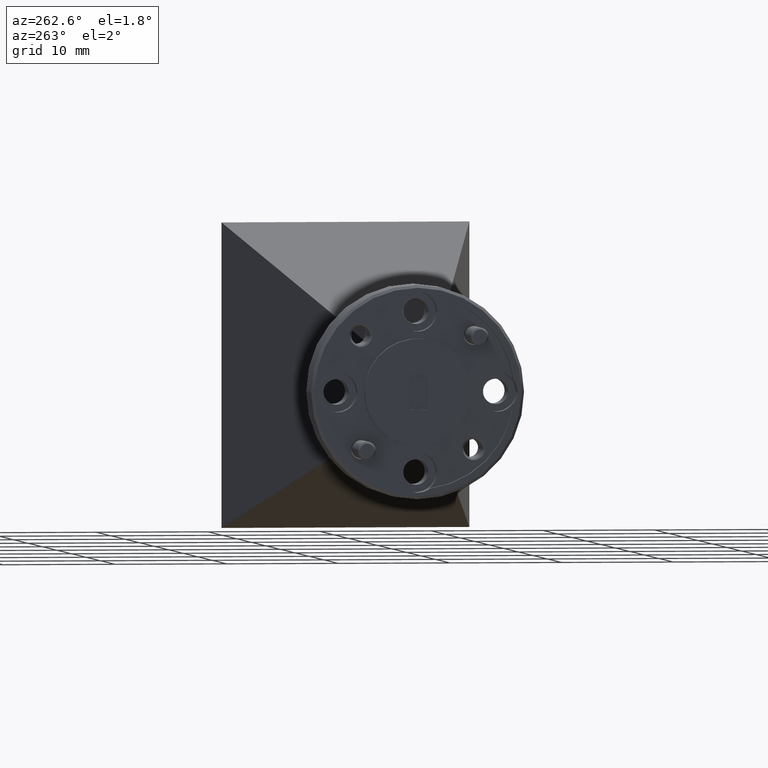
[diagram: clean part render]
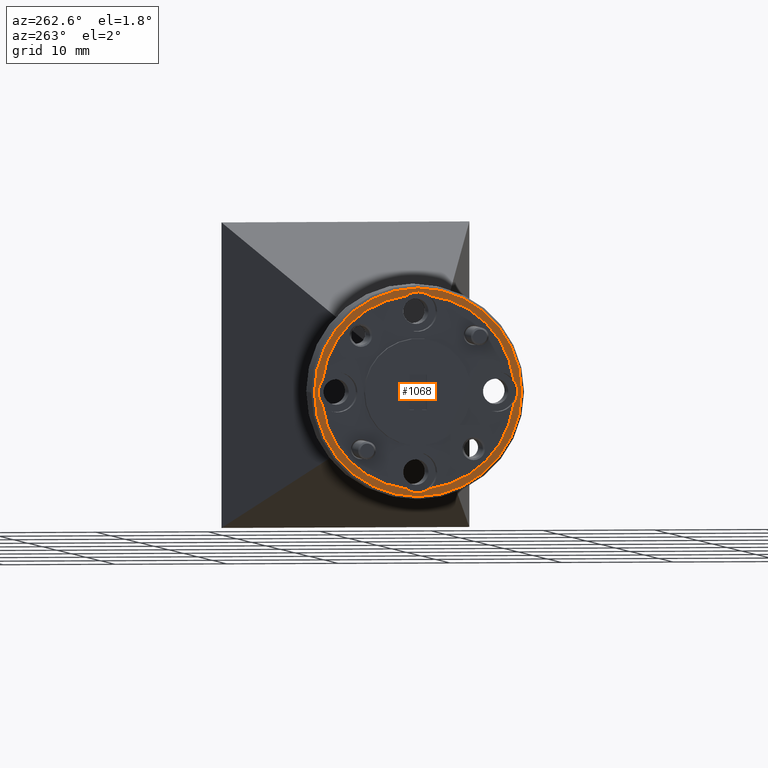
[diagram: same view with one face highlighted and labeled with its STEP entity id]
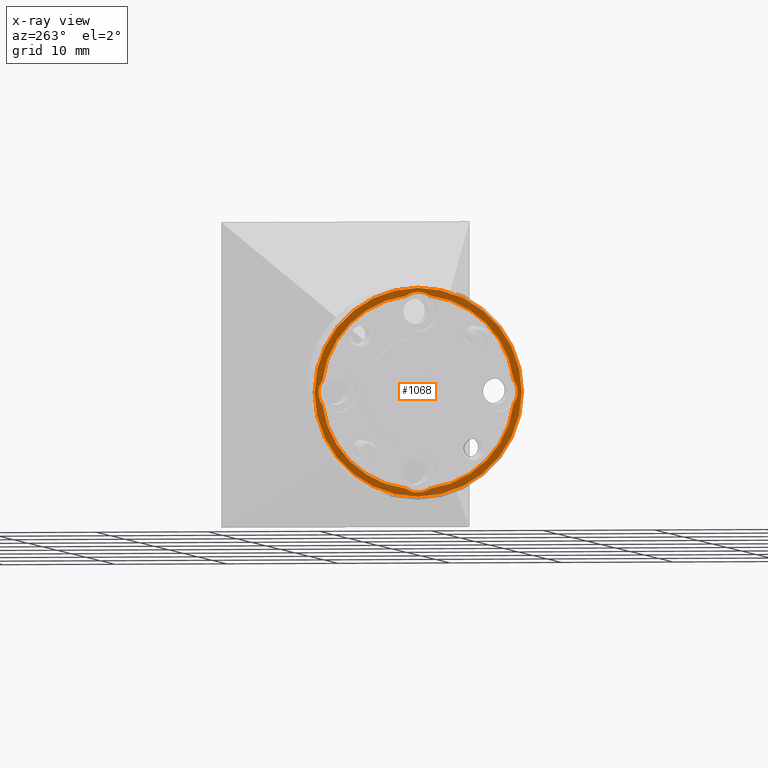
[diagram: x-ray of the same camera — body ghosted, the highlighted face saturated]
A machine part, auxiliary view. The second image highlights one B-rep face of the part: STEP entity #1068.
The next image is the same camera in x-ray: the body ghosted, the highlighted face saturated — about 0% of this face is hidden behind the body in this view.
In plain terms, the highlighted planar face has unit normal (-1, -0, 0).
Its self-contained STEP definition (entity closure, byte-faithful):
#10 = CARTESIAN_POINT ( 'NONE',  ( -5.520880454576205132, 0.4056933872041555422, 2.109983861534752148 ) ) ;
#59 = DIRECTION ( 'NONE',  ( 0.000000000000000000, -1.000000000000000000, 0.000000000000000000 ) ) ;
#75 = DIRECTION ( 'NONE',  ( 0.000000000000000000, -1.000000000000000000, 0.000000000000000000 ) ) ;
#80 = CARTESIAN_POINT ( 'NONE',  ( -5.520880454576205132, 0.6869533872041556632, 2.109983861534752148 ) ) ;
#109 = DIRECTION ( 'NONE',  ( -1.000000000000000000, -8.537024980200825762E-16, 0.000000000000000000 ) ) ;
#226 = EDGE_CURVE ( 'NONE', #2425, #1739, #1092, .T. ) ;
#246 = AXIS2_PLACEMENT_3D ( 'NONE', #976, #390, #1392 ) ;
#248 = AXIS2_PLACEMENT_3D ( 'NONE', #683, #1488, #415 ) ;
#279 = CARTESIAN_POINT ( 'NONE',  ( -5.520880454576204244, 0.3639116076403442479, 1.772560858619300017 ) ) ;
#282 = DIRECTION ( 'NONE',  ( -1.000000000000000000, -8.537024980200825762E-16, 0.000000000000000000 ) ) ;
#310 = CARTESIAN_POINT ( 'NONE',  ( -5.520880454576205132, 0.7806933872041555977, 2.109983861534752148 ) ) ;
#326 = CARTESIAN_POINT ( 'NONE',  ( -5.520880454576204244, 0.05443338720415556720, 2.109983861534752148 ) ) ;
#352 = AXIS2_PLACEMENT_3D ( 'NONE', #2474, #1450, #1464 ) ;
#354 = CIRCLE ( 'NONE', #616, 0.3400000000000000799 ) ;
#359 = CIRCLE ( 'NONE', #2407, 0.07000000000000000666 ) ;
#361 = CARTESIAN_POINT ( 'NONE',  ( -5.520880454576204244, 0.4056933872041555422, 2.391243861534752213 ) ) ;
#372 = ORIENTED_EDGE ( 'NONE', *, *, #1579, .T. ) ;
#390 = DIRECTION ( 'NONE',  ( -1.000000000000000000, -8.537024980200825762E-16, 0.000000000000000000 ) ) ;
#393 = EDGE_CURVE ( 'NONE', #1456, #1236, #1615, .T. ) ;
#405 = EDGE_CURVE ( 'NONE', #2384, #2358, #1827, .T. ) ;
#415 = DIRECTION ( 'NONE',  ( 0.000000000000000000, -1.000000000000000000, 0.000000000000000000 ) ) ;
#423 = AXIS2_PLACEMENT_3D ( 'NONE', #903, #1717, #1333 ) ;
#453 = EDGE_CURVE ( 'NONE', #2178, #549, #1522, .T. ) ;
#454 = ORIENTED_EDGE ( 'NONE', *, *, #2064, .T. ) ;
#537 = FACE_OUTER_BOUND ( 'NONE', #747, .T. ) ;
#549 = VERTEX_POINT ( 'NONE', #2553 ) ;
#600 = CIRCLE ( 'NONE', #1911, 0.06999999999999993727 ) ;
#613 = CARTESIAN_POINT ( 'NONE',  ( -5.520880454576205132, 0.4056933872041555422, 2.109983861534752148 ) ) ;
#616 = AXIS2_PLACEMENT_3D ( 'NONE', #913, #1495, #1721 ) ;
#666 = ORIENTED_EDGE ( 'NONE', *, *, #1777, .F. ) ;
#683 = CARTESIAN_POINT ( 'NONE',  ( -5.520880454576205132, 0.4056933872041555422, 2.109983861534752148 ) ) ;
#706 = DIRECTION ( 'NONE',  ( -1.000000000000000000, -8.537024980200824776E-16, 0.000000000000000000 ) ) ;
#733 = ORIENTED_EDGE ( 'NONE', *, *, #453, .F. ) ;
#747 = EDGE_LOOP ( 'NONE', ( #1889, #1261 ) ) ;
#748 = PLANE ( 'NONE',  #2009 ) ;
#817 = EDGE_CURVE ( 'NONE', #2358, #2384, #2647, .T. ) ;
#838 = DIRECTION ( 'NONE',  ( -1.000000000000000000, -8.537024980200825762E-16, 0.000000000000000000 ) ) ;
#850 = CARTESIAN_POINT ( 'NONE',  ( -5.520880454576205132, 0.4056933872041555977, 2.474983861534751917 ) ) ;
#903 = CARTESIAN_POINT ( 'NONE',  ( -5.520880454576205132, 0.6869533872041556632, 2.109983861534752148 ) ) ;
#913 = CARTESIAN_POINT ( 'NONE',  ( -5.520880454576205132, 0.4056933872041555422, 2.109983861534752148 ) ) ;
#925 = DIRECTION ( 'NONE',  ( 0.000000000000000000, -1.000000000000000000, 0.000000000000000000 ) ) ;
#934 = EDGE_LOOP ( 'NONE', ( #2643, #2393, #1633, #1647, #1795, #733, #454, #666, #372, #1172 ) ) ;
#935 = CARTESIAN_POINT ( 'NONE',  ( -5.520880454576204244, 0.06827038428870349507, 2.151765641098563275 ) ) ;
#950 = CIRCLE ( 'NONE', #352, 0.3400000000000000799 ) ;
#957 = EDGE_CURVE ( 'NONE', #549, #1020, #600, .T. ) ;
#965 = CARTESIAN_POINT ( 'NONE',  ( -5.520880454576205132, 0.7431163901196073951, 2.151765641098564164 ) ) ;
#976 = CARTESIAN_POINT ( 'NONE',  ( -5.520880454576204244, 0.1244333872041555739, 2.109983861534752148 ) ) ;
#1020 = VERTEX_POINT ( 'NONE', #1555 ) ;
#1068 = ADVANCED_FACE ( 'NONE', ( #2356, #537 ), #748, .T. ) ;
#1076 = CARTESIAN_POINT ( 'NONE',  ( -5.520880454576204244, 0.4056933872041555422, 1.828723861534751860 ) ) ;
#1092 = CIRCLE ( 'NONE', #246, 0.07000000000000000666 ) ;
#1095 = AXIS2_PLACEMENT_3D ( 'NONE', #1076, #1894, #59 ) ;
#1157 = DIRECTION ( 'NONE',  ( 0.000000000000000000, -1.000000000000000000, 0.000000000000000000 ) ) ;
#1170 = EDGE_CURVE ( 'NONE', #2425, #1236, #2135, .T. ) ;
#1172 = ORIENTED_EDGE ( 'NONE', *, *, #2510, .F. ) ;
#1236 = VERTEX_POINT ( 'NONE', #279 ) ;
#1248 = DIRECTION ( 'NONE',  ( 0.000000000000000000, 1.000000000000000000, 0.000000000000000000 ) ) ;
#1261 = ORIENTED_EDGE ( 'NONE', *, *, #817, .T. ) ;
#1333 = DIRECTION ( 'NONE',  ( 0.000000000000000000, -1.000000000000000000, 0.000000000000000000 ) ) ;
#1344 = VERTEX_POINT ( 'NONE', #2010 ) ;
#1361 = DIRECTION ( 'NONE',  ( -1.000000000000000000, -8.537024980200825762E-16, 0.000000000000000000 ) ) ;
#1392 = DIRECTION ( 'NONE',  ( 0.000000000000000000, -1.000000000000000000, 0.000000000000000000 ) ) ;
#1450 = DIRECTION ( 'NONE',  ( 1.000000000000000000, 8.537024980200825762E-16, -0.000000000000000000 ) ) ;
#1456 = VERTEX_POINT ( 'NONE', #2022 ) ;
#1464 = DIRECTION ( 'NONE',  ( 0.000000000000000000, 1.000000000000000000, 0.000000000000000000 ) ) ;
#1488 = DIRECTION ( 'NONE',  ( -1.000000000000000000, -8.537024980200825762E-16, 0.000000000000000000 ) ) ;
#1495 = DIRECTION ( 'NONE',  ( 1.000000000000000000, 8.537024980200825762E-16, -0.000000000000000000 ) ) ;
#1500 = CIRCLE ( 'NONE', #1844, 0.3400000000000000799 ) ;
#1511 = DIRECTION ( 'NONE',  ( 0.000000000000000000, 1.000000000000000000, 0.000000000000000000 ) ) ;
#1521 = CARTESIAN_POINT ( 'NONE',  ( -5.520880454576205132, 0.4056933872041555422, 2.109983861534752148 ) ) ;
#1522 = CIRCLE ( 'NONE', #423, 0.06999999999999993727 ) ;
#1555 = CARTESIAN_POINT ( 'NONE',  ( -5.520880454576205132, 0.7431163901196072841, 2.068202081970940132 ) ) ;
#1579 = EDGE_CURVE ( 'NONE', #2646, #2015, #950, .T. ) ;
#1615 = CIRCLE ( 'NONE', #1095, 0.06999999999999993727 ) ;
#1633 = ORIENTED_EDGE ( 'NONE', *, *, #393, .F. ) ;
#1647 = ORIENTED_EDGE ( 'NONE', *, *, #2013, .T. ) ;
#1652 = CARTESIAN_POINT ( 'NONE',  ( -5.520880454576205132, 0.3639116076403442479, 2.447406864450204278 ) ) ;
#1717 = DIRECTION ( 'NONE',  ( -1.000000000000000000, -8.537024980200825762E-16, 0.000000000000000000 ) ) ;
#1721 = DIRECTION ( 'NONE',  ( 0.000000000000000000, 1.000000000000000000, 0.000000000000000000 ) ) ;
#1739 = VERTEX_POINT ( 'NONE', #326 ) ;
#1777 = EDGE_CURVE ( 'NONE', #2646, #1344, #2185, .T. ) ;
#1795 = ORIENTED_EDGE ( 'NONE', *, *, #957, .F. ) ;
#1827 = CIRCLE ( 'NONE', #248, 0.3650000000000000466 ) ;
#1844 = AXIS2_PLACEMENT_3D ( 'NONE', #1521, #2337, #1511 ) ;
#1885 = AXIS2_PLACEMENT_3D ( 'NONE', #613, #2496, #1248 ) ;
#1889 = ORIENTED_EDGE ( 'NONE', *, *, #405, .T. ) ;
#1894 = DIRECTION ( 'NONE',  ( -1.000000000000000000, -8.537024980200825762E-16, 0.000000000000000000 ) ) ;
#1911 = AXIS2_PLACEMENT_3D ( 'NONE', #80, #109, #925 ) ;
#2009 = AXIS2_PLACEMENT_3D ( 'NONE', #310, #706, #2326 ) ;
#2010 = CARTESIAN_POINT ( 'NONE',  ( -5.520880454576204244, 0.4474751667679670031, 2.447406864450204278 ) ) ;
#2013 = EDGE_CURVE ( 'NONE', #1456, #1020, #354, .T. ) ;
#2015 = VERTEX_POINT ( 'NONE', #935 ) ;
#2022 = CARTESIAN_POINT ( 'NONE',  ( -5.520880454576205132, 0.4474751667679668365, 1.772560858619300017 ) ) ;
#2064 = EDGE_CURVE ( 'NONE', #2178, #1344, #1500, .T. ) ;
#2076 = DIRECTION ( 'NONE',  ( 0.000000000000000000, -1.000000000000000000, 0.000000000000000000 ) ) ;
#2113 = CARTESIAN_POINT ( 'NONE',  ( -5.520880454576204244, 0.1244333872041555739, 2.109983861534752148 ) ) ;
#2135 = CIRCLE ( 'NONE', #1885, 0.3400000000000000799 ) ;
#2178 = VERTEX_POINT ( 'NONE', #965 ) ;
#2185 = CIRCLE ( 'NONE', #2271, 0.07000000000000007605 ) ;
#2271 = AXIS2_PLACEMENT_3D ( 'NONE', #361, #1361, #1157 ) ;
#2326 = DIRECTION ( 'NONE',  ( 8.537024980200824776E-16, -1.000000000000000000, 0.000000000000000000 ) ) ;
#2333 = CARTESIAN_POINT ( 'NONE',  ( -5.520880454576204244, 0.06827038428870356446, 2.068202081970941020 ) ) ;
#2337 = DIRECTION ( 'NONE',  ( 1.000000000000000000, 8.537024980200825762E-16, -0.000000000000000000 ) ) ;
#2356 = FACE_BOUND ( 'NONE', #934, .T. ) ;
#2358 = VERTEX_POINT ( 'NONE', #850 ) ;
#2384 = VERTEX_POINT ( 'NONE', #2464 ) ;
#2393 = ORIENTED_EDGE ( 'NONE', *, *, #1170, .T. ) ;
#2407 = AXIS2_PLACEMENT_3D ( 'NONE', #2113, #282, #75 ) ;
#2425 = VERTEX_POINT ( 'NONE', #2333 ) ;
#2431 = AXIS2_PLACEMENT_3D ( 'NONE', #10, #838, #2076 ) ;
#2464 = CARTESIAN_POINT ( 'NONE',  ( -5.520880454576205132, 0.4056933872041555422, 1.744983861534751934 ) ) ;
#2474 = CARTESIAN_POINT ( 'NONE',  ( -5.520880454576205132, 0.4056933872041555422, 2.109983861534752148 ) ) ;
#2496 = DIRECTION ( 'NONE',  ( 1.000000000000000000, 8.537024980200825762E-16, -0.000000000000000000 ) ) ;
#2510 = EDGE_CURVE ( 'NONE', #1739, #2015, #359, .T. ) ;
#2553 = CARTESIAN_POINT ( 'NONE',  ( -5.520880454576205132, 0.7569533872041556144, 2.109983861534752148 ) ) ;
#2643 = ORIENTED_EDGE ( 'NONE', *, *, #226, .F. ) ;
#2646 = VERTEX_POINT ( 'NONE', #1652 ) ;
#2647 = CIRCLE ( 'NONE', #2431, 0.3650000000000000466 ) ;